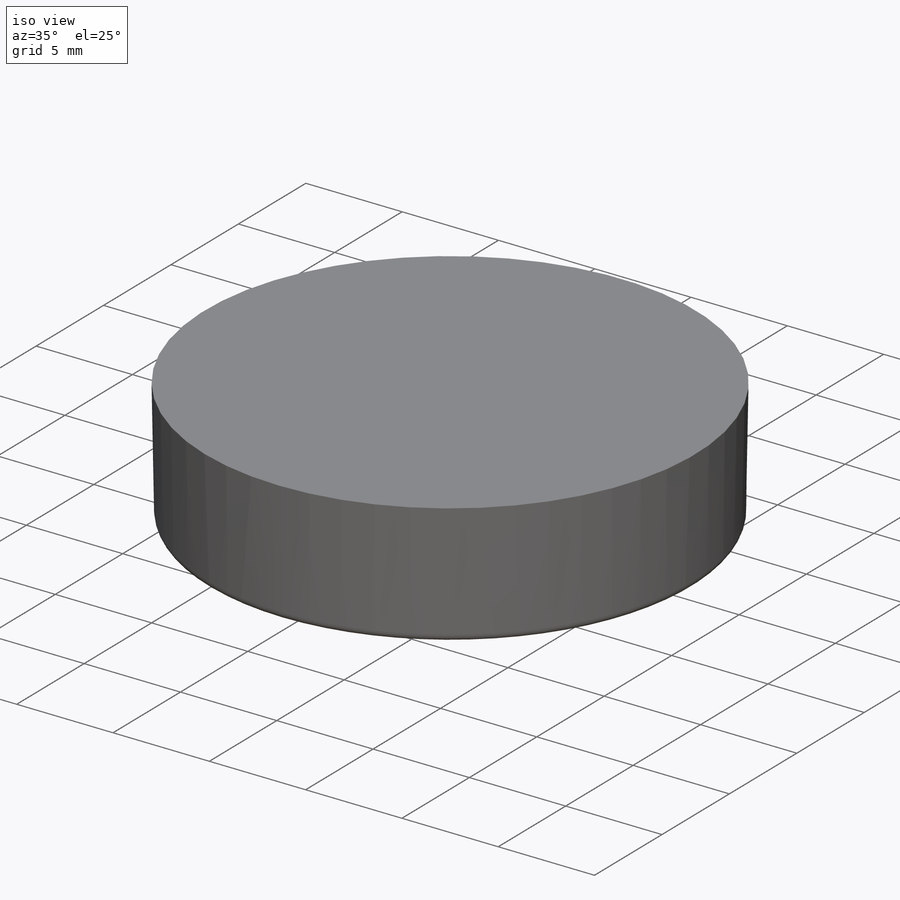
[diagram: iso view]
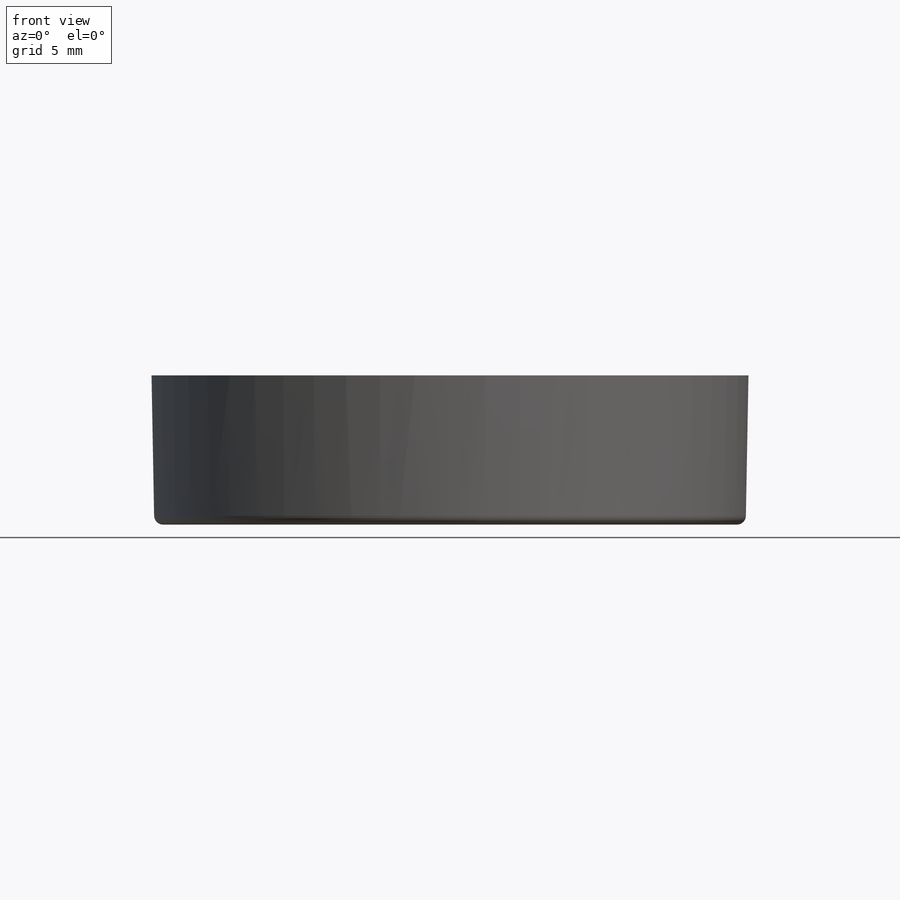
[diagram: front view]
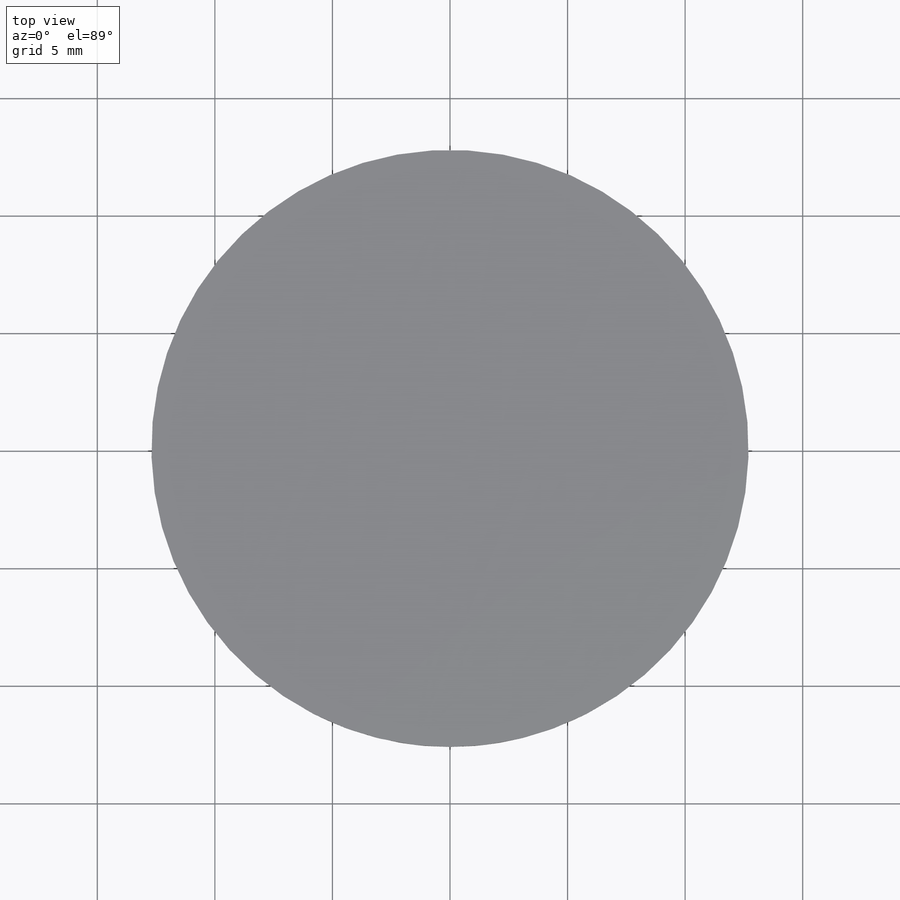
[diagram: top view]
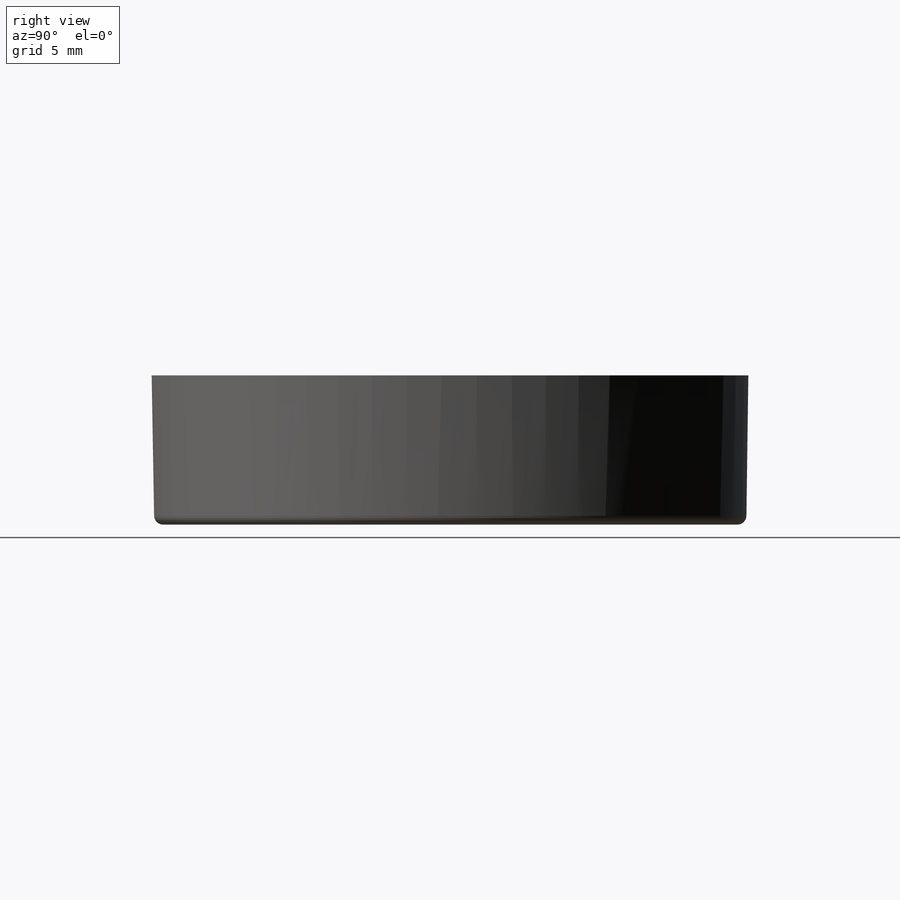
[diagram: right view]
SOLIDWORKS PART (.sldprt)
format: sldprt  version: not decoded by parser v0  size: 251,904 bytes
history: native  units: mm
features: sketch x4, extrude x2, material x1, fillet x1 (+12 scaffold rows collapsed)
feature tree (20):
  scaffold x12  (default folders/planes/origin — collapsed)
  material  "CA"
  sketch  "Sketch1"  dims[D3=3.175mm D1=25.4mm D2=25.4mm]
  extrude  "Boss-Extrude1"  Depth=2.3114mm
  sketch  "Sketch6"  dims[c1.D1=2.54mm c1.D2=~8.361978mm c2.D2=90.0deg c2.D3=9.525mm]
  sketch  "Sketch7"  dims[D1=0.0mm D2=1.778mm]
  extrude  "Boss-Extrude3"  Depth=6.35mm
  fillet  "Fillet2"  Radius=0.381mm
  sketch  "Sketch11 - OFFSET .005"  dims[D1=0.127mm]
decode coverage: 7 of 7 modeling features carry decoded parameters
note: ~ marks probable driven/reference dimensions
note: suppression state not decoded; provenance and decode notes live in map.json
